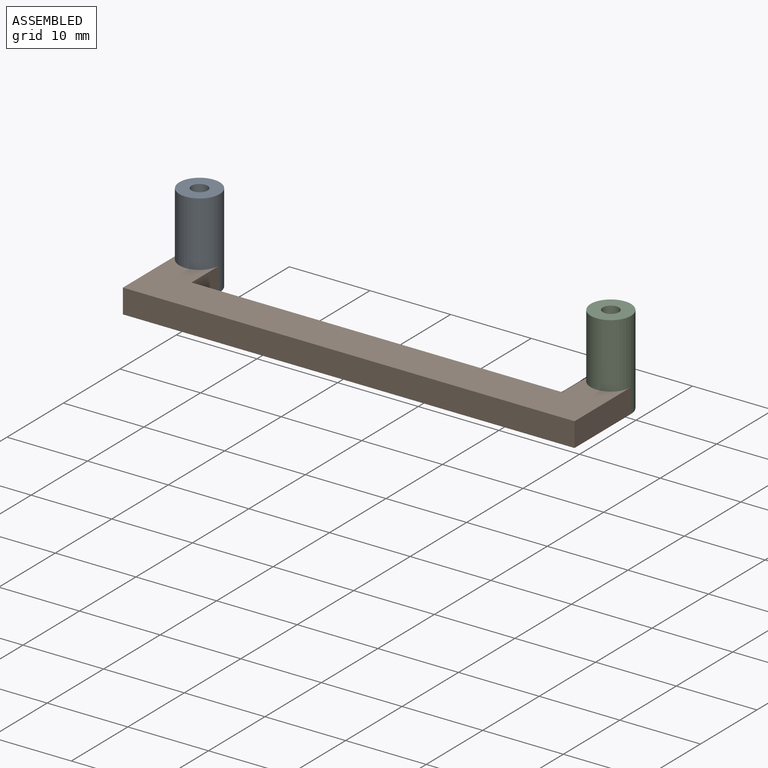
[diagram: assembled view]
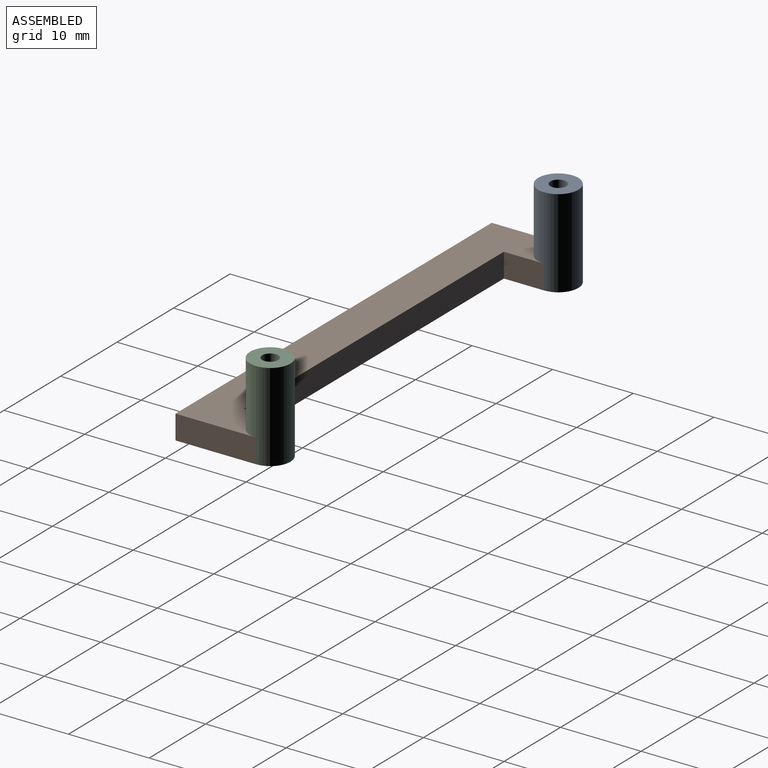
[diagram: assembled view, second angle]
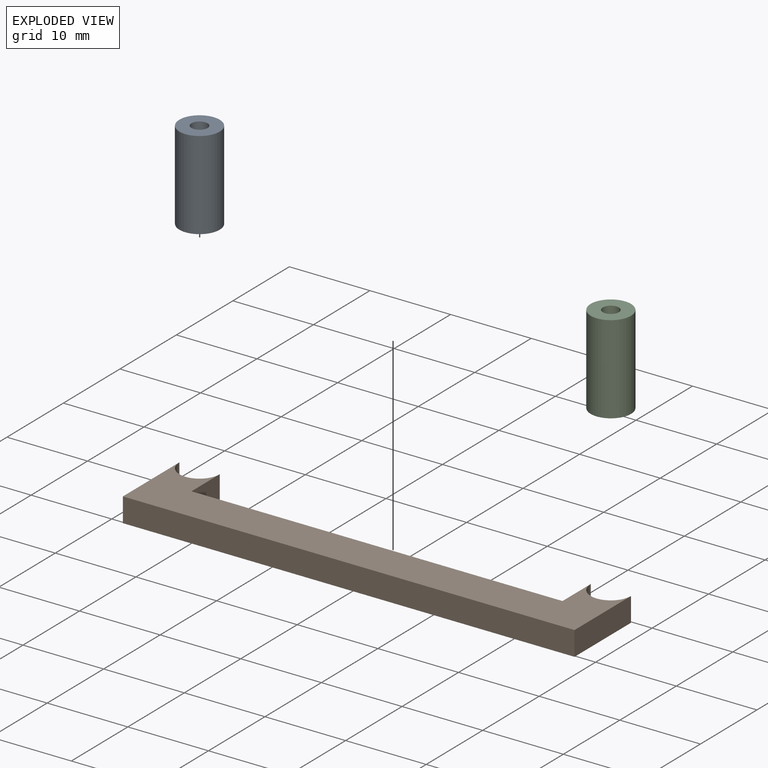
[diagram: exploded view]
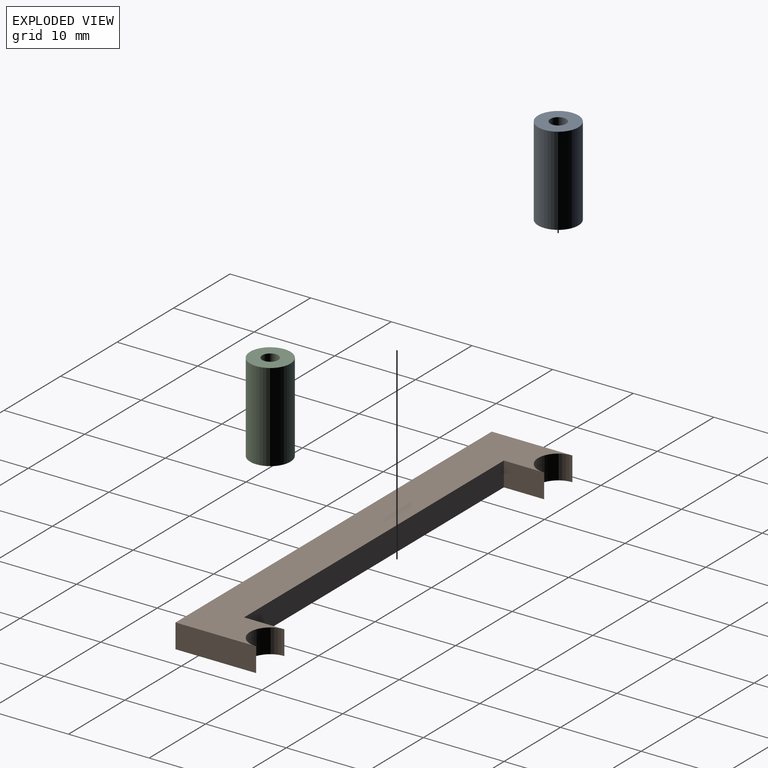
[diagram: exploded view, second angle]
ASSEMBLY  parts=3 mates=2
PART A: 4 faces, bbox 5x5x11 mm
  f0: cylinder r=1mm len=11mm, axis (0,0,-1), area 69.1mm2, adj f2,f3
  f1: cylinder r=2.5mm len=11mm, axis (0,0,-1), area 172.8mm2, adj f2,f3
  f2: plane 5x5mm, normal (0,0,1), area 16.5mm2, adj f0,f1
  f3: plane 5x5mm, normal (0,0,-1), area 16.5mm2, adj f0,f1
PART B: 10 faces, bbox 56x10x3 mm
  f0: cylinder r=2.5mm len=5mm, axis (0,0,-1), area 23.6mm2, adj f1,f7,f8,f9
  f1: plane 10x3mm, normal (-1,0,0), area 30mm2, adj f0,f2,f8,f9
  f2: plane 56x3mm, normal (0,-1,0), area 168mm2, adj f1,f3,f8,f9
  f3: plane 10x3mm, normal (1,0,0), area 30mm2, adj f2,f4,f8,f9
  f4: cylinder r=2.5mm len=5mm, axis (0,0,-1), area 23.6mm2, adj f3,f5,f8,f9
  f5: plane 5x3mm, normal (-1,0,0), area 15mm2, adj f4,f6,f8,f9
  f6: plane 46x3mm, normal (0,1,0), area 138mm2, adj f5,f7,f8,f9
  f7: plane 5x3mm, normal (1,0,0), area 15mm2, adj f0,f6,f8,f9
  f8: plane 56x10mm, normal (0,0,1), area 310.4mm2, adj f0,f1,f2,f3,f4,f5,f6,f7
  f9: plane 56x10mm, normal (0,0,-1), area 310.4mm2, adj f0,f1,f2,f3,f4,f5,f6,f7
PART C: 4 faces, bbox 5x5x11 mm
  f0: cylinder r=1mm len=11mm, axis (0,0,-1), area 69.1mm2, adj f2,f3
  f1: cylinder r=2.5mm len=11mm, axis (0,0,-1), area 172.8mm2, adj f2,f3
  f2: plane 5x5mm, normal (0,0,1), area 16.5mm2, adj f0,f1
  f3: plane 5x5mm, normal (0,0,-1), area 16.5mm2, adj f0,f1
PLACE A t=(25.09,28.28,4.02)mm
PLACE B t=(25.09,28.28,4.02)mm
PLACE C t=(25.09,28.28,4.02)mm
MATE fastened C.f0 <-> B.f4  axis (0,0,-1) through (76.09,28.28,4.02)mm
MATE fastened B.f0 <-> A.f0  axis (0,0,-1) through (25.09,28.28,4.02)mm
